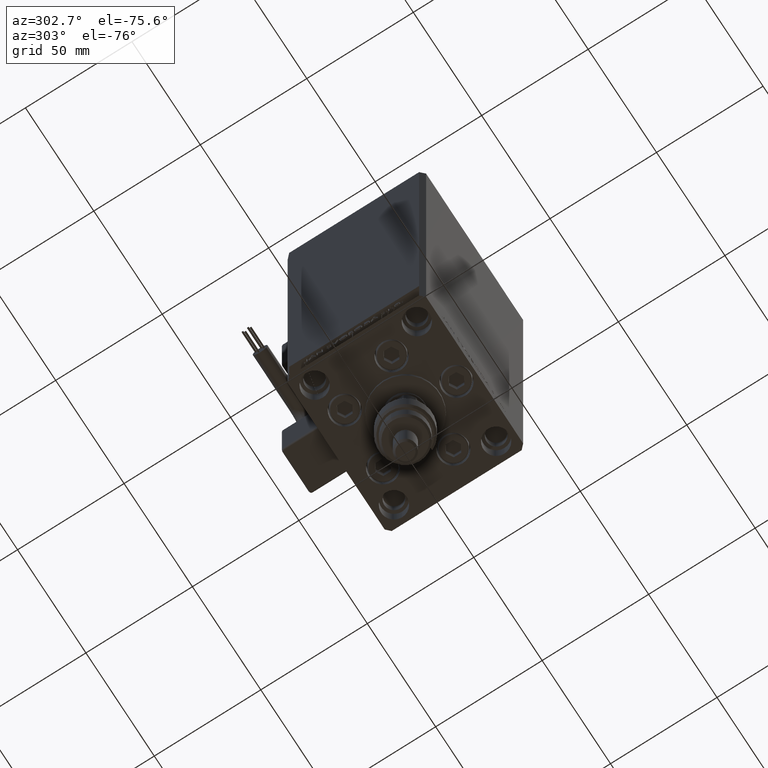
[diagram: clean part render]
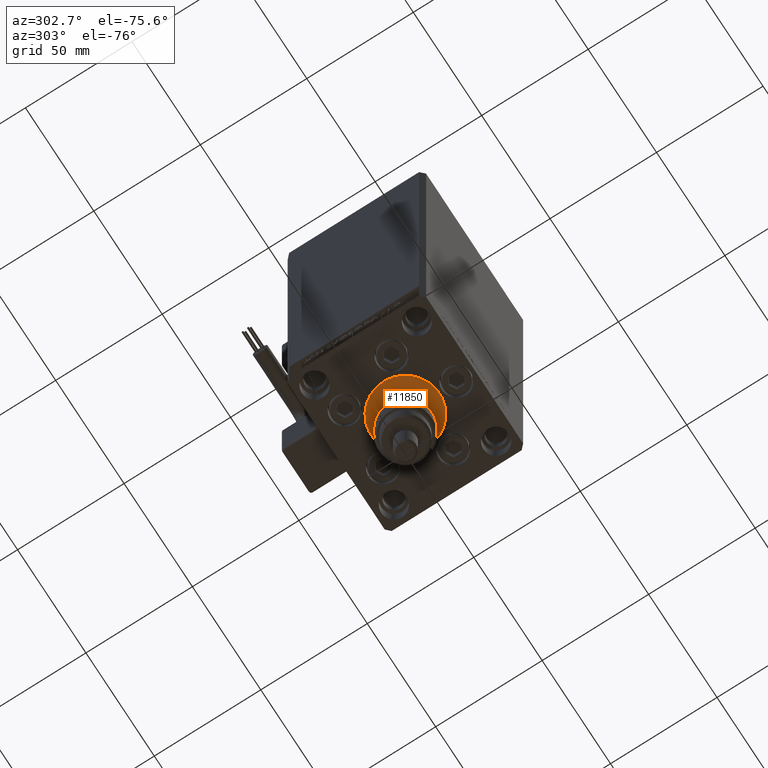
[diagram: same view with one face highlighted and labeled with its STEP entity id]
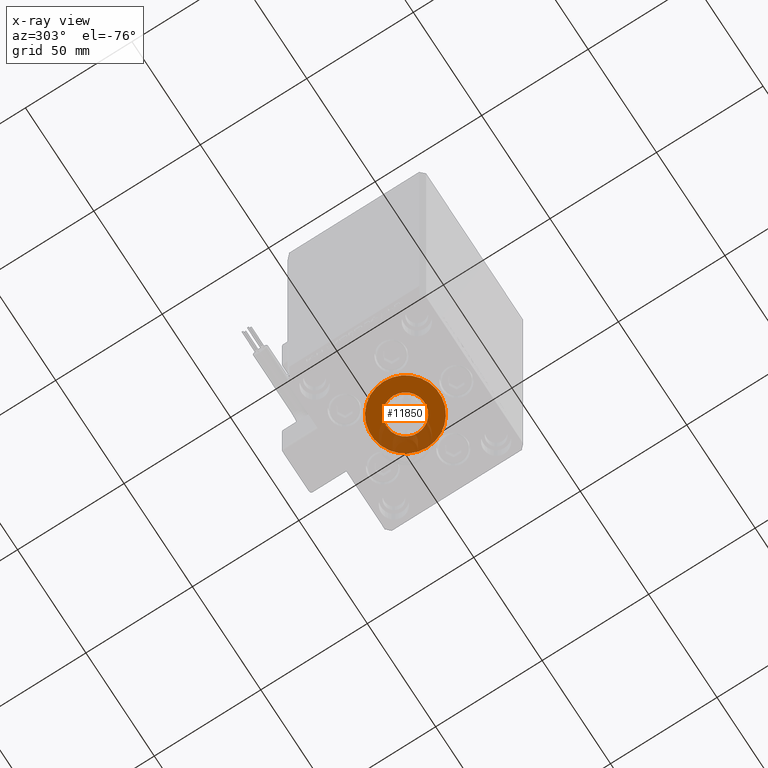
[diagram: x-ray of the same camera — body ghosted, the highlighted face saturated]
A machine part, auxiliary view. The second image highlights one B-rep face of the part: STEP entity #11850.
The next image is the same camera in x-ray: the body ghosted, the highlighted face saturated — about 30% of this face is hidden behind the body in this view.
In plain terms, the highlighted planar face has unit normal (0, 0, -1).
Its self-contained STEP definition (entity closure, byte-faithful):
#204 = VERTEX_POINT ( 'NONE', #27002 ) ;
#2764 = FACE_BOUND ( 'NONE', #40380, .T. ) ;
#4963 = DIRECTION ( 'NONE',  ( 1.000000000000000000, 0.000000000000000000, 0.000000000000000000 ) ) ;
#6245 = CARTESIAN_POINT ( 'NONE',  ( 16.00000000000000355, -4.979459025271462852E-15, 2.000000000000000000 ) ) ;
#6555 = PLANE ( 'NONE',  #43111 ) ;
#9481 = CARTESIAN_POINT ( 'NONE',  ( 0.000000000000000000, -6.938893903907228378E-15, 2.000000000000000000 ) ) ;
#10707 = AXIS2_PLACEMENT_3D ( 'NONE', #16827, #50631, #42229 ) ;
#11603 = CARTESIAN_POINT ( 'NONE',  ( 0.000000000000000000, -6.938893903907228378E-15, 2.000000000000000000 ) ) ;
#11850 = ADVANCED_FACE ( 'NONE', ( #2764, #18716 ), #6555, .T. ) ;
#12237 = EDGE_LOOP ( 'NONE', ( #39100, #45337 ) ) ;
#12513 = CARTESIAN_POINT ( 'NONE',  ( 0.000000000000000000, -6.938893903907228378E-15, 2.000000000000000000 ) ) ;
#12604 = AXIS2_PLACEMENT_3D ( 'NONE', #12513, #28993, #4963 ) ;
#13318 = CIRCLE ( 'NONE', #10707, 9.000000000000000000 ) ;
#13464 = CIRCLE ( 'NONE', #12604, 9.000000000000000000 ) ;
#14114 = CIRCLE ( 'NONE', #52144, 16.00000000000000355 ) ;
#14655 = DIRECTION ( 'NONE',  ( 0.000000000000000000, 0.000000000000000000, 1.000000000000000000 ) ) ;
#16827 = CARTESIAN_POINT ( 'NONE',  ( 0.000000000000000000, -6.938893903907228378E-15, 2.000000000000000000 ) ) ;
#18716 = FACE_OUTER_BOUND ( 'NONE', #12237, .T. ) ;
#18977 = CARTESIAN_POINT ( 'NONE',  ( 0.000000000000000000, -6.938893903907228378E-15, 2.000000000000000000 ) ) ;
#19189 = DIRECTION ( 'NONE',  ( 1.000000000000000000, 0.000000000000000000, 0.000000000000000000 ) ) ;
#24480 = VERTEX_POINT ( 'NONE', #25974 ) ;
#25974 = CARTESIAN_POINT ( 'NONE',  ( -16.00000000000000355, -6.938893903907228378E-15, 2.000000000000000000 ) ) ;
#26252 = EDGE_CURVE ( 'NONE', #49239, #204, #13318, .T. ) ;
#27002 = CARTESIAN_POINT ( 'NONE',  ( 9.000000000000000000, -6.938893903907228378E-15, 2.000000000000000000 ) ) ;
#27579 = AXIS2_PLACEMENT_3D ( 'NONE', #11603, #39722, #19189 ) ;
#27902 = CARTESIAN_POINT ( 'NONE',  ( -9.000000000000000000, -5.836711784674610467E-15, 2.000000000000000000 ) ) ;
#28232 = EDGE_CURVE ( 'NONE', #45056, #24480, #14114, .T. ) ;
#28993 = DIRECTION ( 'NONE',  ( 0.000000000000000000, 0.000000000000000000, 1.000000000000000000 ) ) ;
#29326 = CIRCLE ( 'NONE', #27579, 16.00000000000000355 ) ;
#32825 = EDGE_CURVE ( 'NONE', #204, #49239, #13464, .T. ) ;
#33293 = ORIENTED_EDGE ( 'NONE', *, *, #32825, .F. ) ;
#33832 = DIRECTION ( 'NONE',  ( 0.000000000000000000, 0.000000000000000000, 1.000000000000000000 ) ) ;
#39100 = ORIENTED_EDGE ( 'NONE', *, *, #50925, .T. ) ;
#39722 = DIRECTION ( 'NONE',  ( 0.000000000000000000, 0.000000000000000000, 1.000000000000000000 ) ) ;
#40380 = EDGE_LOOP ( 'NONE', ( #33293, #45432 ) ) ;
#42229 = DIRECTION ( 'NONE',  ( 1.000000000000000000, 0.000000000000000000, 0.000000000000000000 ) ) ;
#43111 = AXIS2_PLACEMENT_3D ( 'NONE', #18977, #14655, #52798 ) ;
#45056 = VERTEX_POINT ( 'NONE', #6245 ) ;
#45337 = ORIENTED_EDGE ( 'NONE', *, *, #28232, .T. ) ;
#45432 = ORIENTED_EDGE ( 'NONE', *, *, #26252, .F. ) ;
#49239 = VERTEX_POINT ( 'NONE', #27902 ) ;
#50601 = DIRECTION ( 'NONE',  ( 1.000000000000000000, 0.000000000000000000, 0.000000000000000000 ) ) ;
#50631 = DIRECTION ( 'NONE',  ( 0.000000000000000000, 0.000000000000000000, 1.000000000000000000 ) ) ;
#50925 = EDGE_CURVE ( 'NONE', #24480, #45056, #29326, .T. ) ;
#52144 = AXIS2_PLACEMENT_3D ( 'NONE', #9481, #33832, #50601 ) ;
#52798 = DIRECTION ( 'NONE',  ( 1.000000000000000000, 0.000000000000000000, -0.000000000000000000 ) ) ;